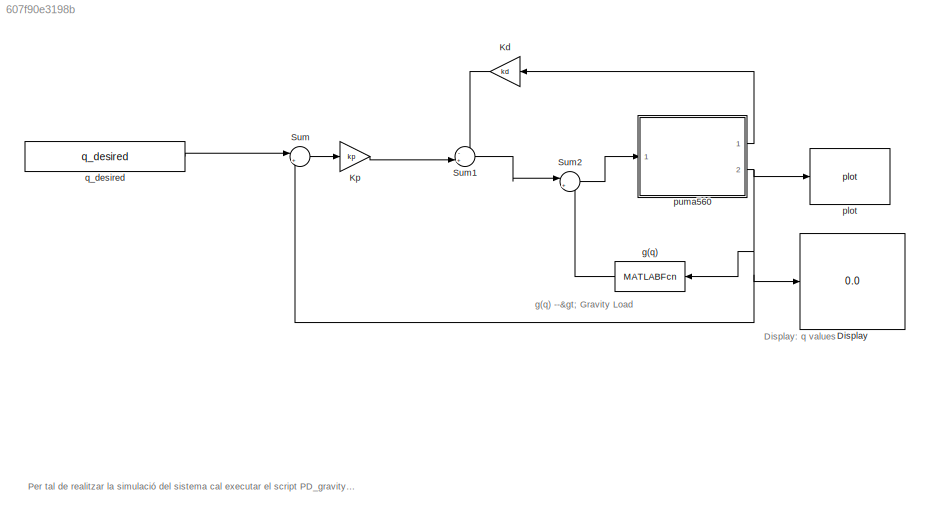
MODEL slx_607f90e3198b
KIND model
CONFIG AbsTol = auto
CONFIG EnableMultiTasking = off
CONFIG FixedStep = 0.1
CONFIG MaxStep = auto
CONFIG MinStep = auto
CONFIG RelTol = 1e-3
CONFIG SampleTimeConstraint = Unconstrained
CONFIG Solver = FixedStepAuto
CONFIG SolverName = FixedStepAuto
CONFIG StartTime = 0.0
CONFIG StopTime = 100
BLOCK [Display] Display
  Decimation = 1
  Ports = [1]
BLOCK [Gain] Kd
  Gain = kd
  OutDataTypeStr = Inherit: Inherit via internal rule
  ParamDataTypeStr = Inherit: Inherit via internal rule
  SaturateOnIntegerOverflow = off
BLOCK [Gain] Kp
  Gain = kp
  OutDataTypeStr = Inherit: Inherit via internal rule
  ParamDataTypeStr = Inherit: Inherit via internal rule
  SaturateOnIntegerOverflow = off
BLOCK [Sum] Sum
  IconShape = round
  InputSameDT = off
  Inputs = |+-
  OutDataTypeStr = Inherit: Inherit via internal rule
  Ports = [2, 1]
  SaturateOnIntegerOverflow = off
BLOCK [Sum] Sum1
  IconShape = round
  InputSameDT = off
  Inputs = -+|
  OutDataTypeStr = Inherit: Inherit via internal rule
  Ports = [2, 1]
  SaturateOnIntegerOverflow = off
BLOCK [Sum] Sum2
  IconShape = round
  InputSameDT = off
  Inputs = |++
  OutDataTypeStr = Inherit: Inherit via internal rule
  Ports = [2, 1]
  SaturateOnIntegerOverflow = off
BLOCK [MATLABFcn] g(q)
  MATLABFcn = p560.gravload(u')
  Ports = [1, 1]
BLOCK [Reference] plot  REF=roblocks/Arm/plot  (lib defined in mdl_2a292b13c81b, mdl_69400f8cfe22, +12 more)
  Ports = [1]
  SourceBlock = roblocks/Arm/plot
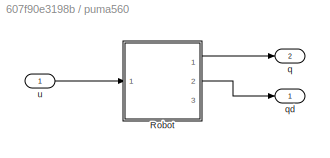
BLOCK [SubSystem] puma560
  Ports = [1, 2]
  RequestExecContextInheritance = off
  Variant = off
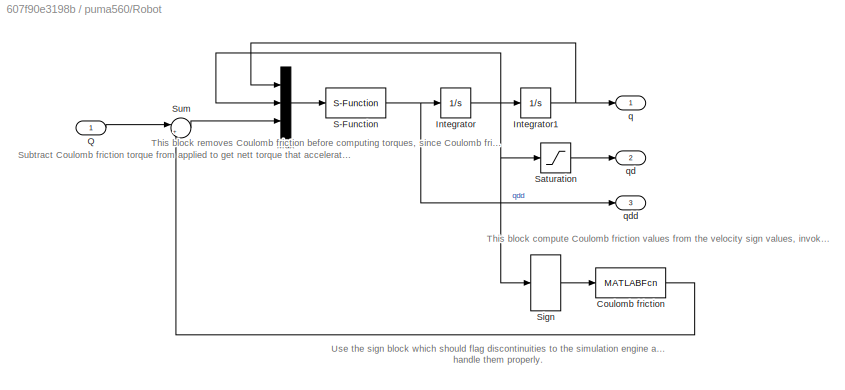
BLOCK [SubSystem] puma560/Robot
  AncestorBlock = roblocks/Arm/Robot
  Ports = [1, 3]
  RequestExecContextInheritance = off
  Variant = off
BLOCK [MATLABFcn] puma560/Robot/Coulomb friction
  MATLABFcn = slcoulomb(robot,u)
  Output1D = off
  OutputDimensions = [robot.n 1]
  Ports = [1, 1]
BLOCK [Integrator] puma560/Robot/Integrator
  Ports = [1, 1]
BLOCK [Integrator] puma560/Robot/Integrator1
  InitialCondition = q0
  Ports = [1, 1]
BLOCK [Mux] puma560/Robot/Mux
  DisplayOption = bar
  Inputs = 3
  Ports = [3, 1]
BLOCK [Inport] puma560/Robot/Q
  IconDisplay = Port number
BLOCK [S-Function] puma560/Robot/S-Function
  EnableBusSupport = off
  FunctionName = slaccel
  Parameters = robot.nofriction()
  Ports = [1, 1]
  SFcnIsStateOwnerBlock = off
  SFunctionDeploymentMode = off
BLOCK [Saturate] puma560/Robot/Saturation
  InputPortMap = u0
  LowerLimit = qd_lower_sat_limit
  Ports = [1, 1]
  UpperLimit = qd_upper_sat_limit
  ZeroCross = off
BLOCK [Signum] puma560/Robot/Sign
BLOCK [Sum] puma560/Robot/Sum
  IconShape = round
  InputSameDT = off
  Inputs = |+-
  OutDataTypeStr = Inherit: Inherit via internal rule
  Ports = [2, 1]
  SaturateOnIntegerOverflow = off
BLOCK [Outport] puma560/Robot/q
  IconDisplay = Port number
BLOCK [Outport] puma560/Robot/qd
  IconDisplay = Port number
  Port = 2
BLOCK [Outport] puma560/Robot/qdd
  IconDisplay = Port number
  Port = 3
BLOCK [Outport] puma560/q
  IconDisplay = Port number
  Port = 2
BLOCK [Outport] puma560/qd
  IconDisplay = Port number
BLOCK [Inport] puma560/u
  IconDisplay = Port number
BLOCK [Constant] q_desired
  Value = q_desired
ANNOTATION (root): Display: q values
ANNOTATION (root): g(q) --> Gravity Load
ANNOTATION (root): Per tal de realitzar la simulació del sistema cal executar el script PD_gravity_compensation_init.m que inicialitza les variables i paràmetres del model.
ANNOTATION puma560/Robot: Subtract Coulomb friction torque from applied to get nett torque that accelerates the joints
ANNOTATION puma560/Robot: This block compute Coulomb friction values from the velocity sign values, invokes slcoulomb to do that
ANNOTATION puma560/Robot: This block removes Coulomb friction before computing torques, since Coulomb friction now done by the red wiring
ANNOTATION puma560/Robot: Use the sign block which should flag discontinuities to the simulation engine and handle them properly.
LINE Kd:1 -> Sum1:1
LINE Kp:1 -> Sum1:2
LINE Sum1:1 -> Sum2:1
LINE Sum2:1 -> puma560:1
LINE Sum:1 -> Kp:1
LINE g(q):1 -> Sum2:2
LINE puma560/Robot:1 -> puma560/q:1
LINE puma560/Robot:2 -> puma560/qd:1
LINE puma560/u:1 -> puma560/Robot:1
LINE puma560:1 -> Kd:1
NET puma560:2 -> Display:1, Sum:2, g(q):1, plot:1
LINE q_desired:1 -> Sum:1
note: NET lines group one-source signal fan-out (src -> all destinations, sorted); 1:1 wires keep LINE
